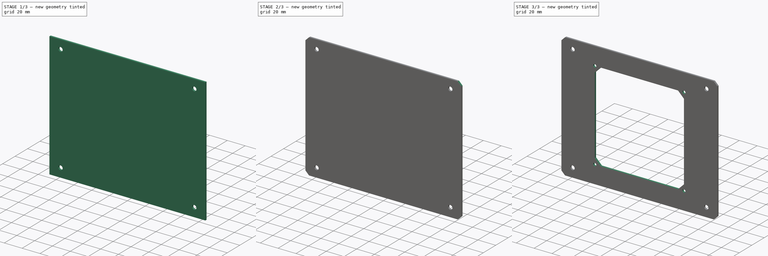
[diagram: build sequence overview — one tinted view per stage of 3, left to right]
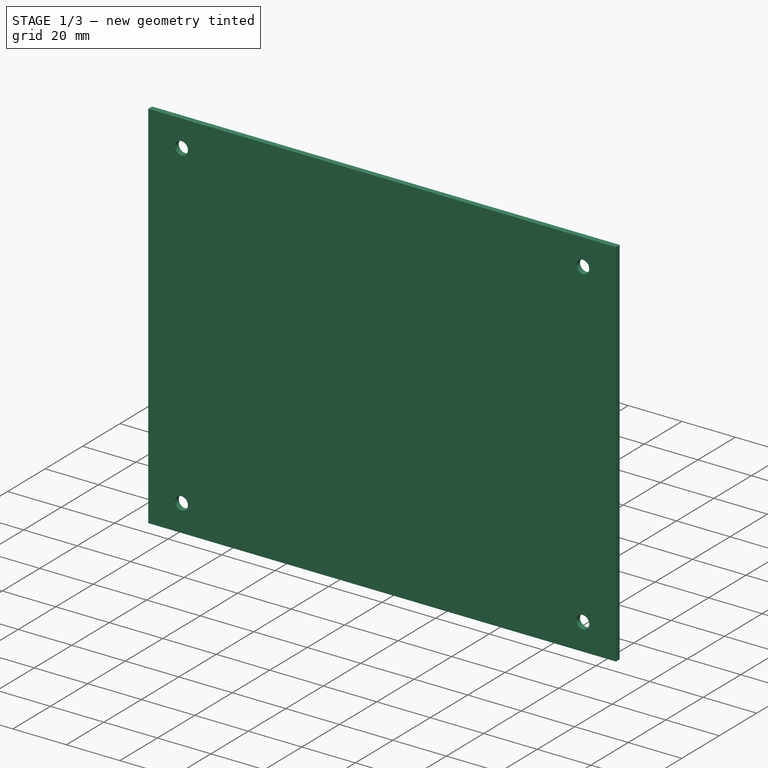
[diagram: stage 1 of 3 — iso view after this stage's code; geometry added in this stage tinted green]
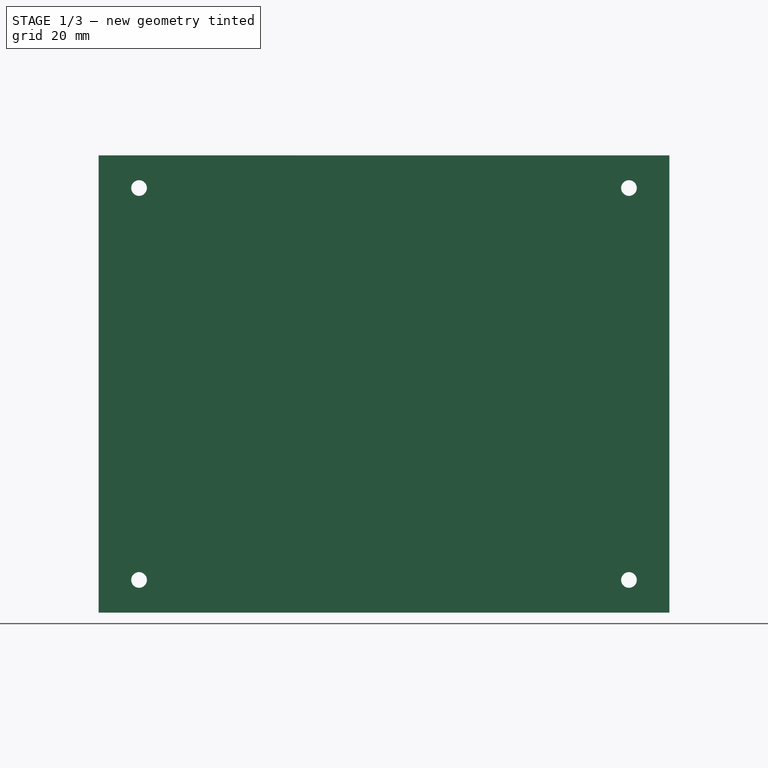
[diagram: stage 1 of 3 — front view after this stage's code; geometry added in this stage tinted green]
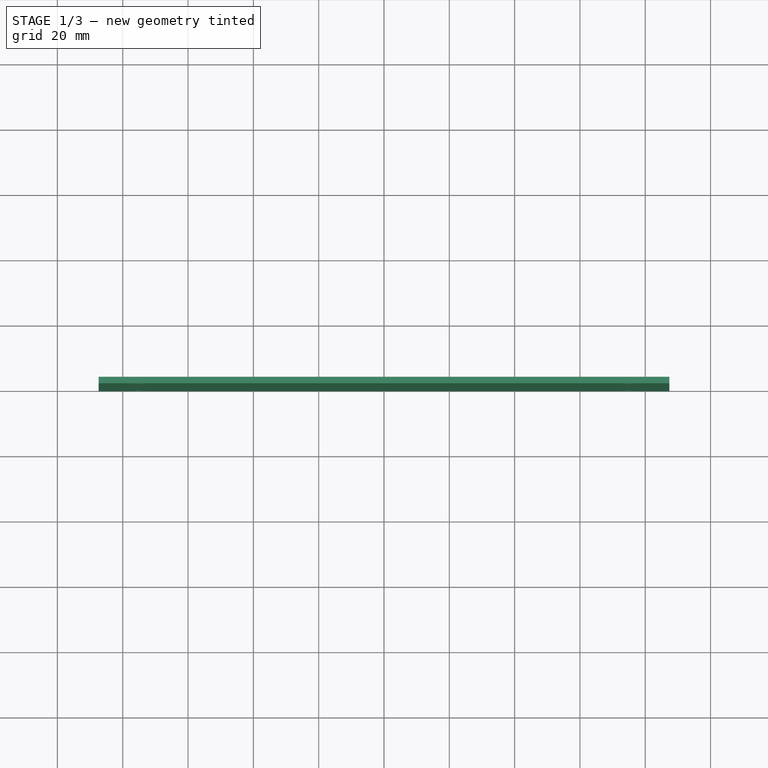
[diagram: stage 1 of 3 — top view after this stage's code; geometry added in this stage tinted green]
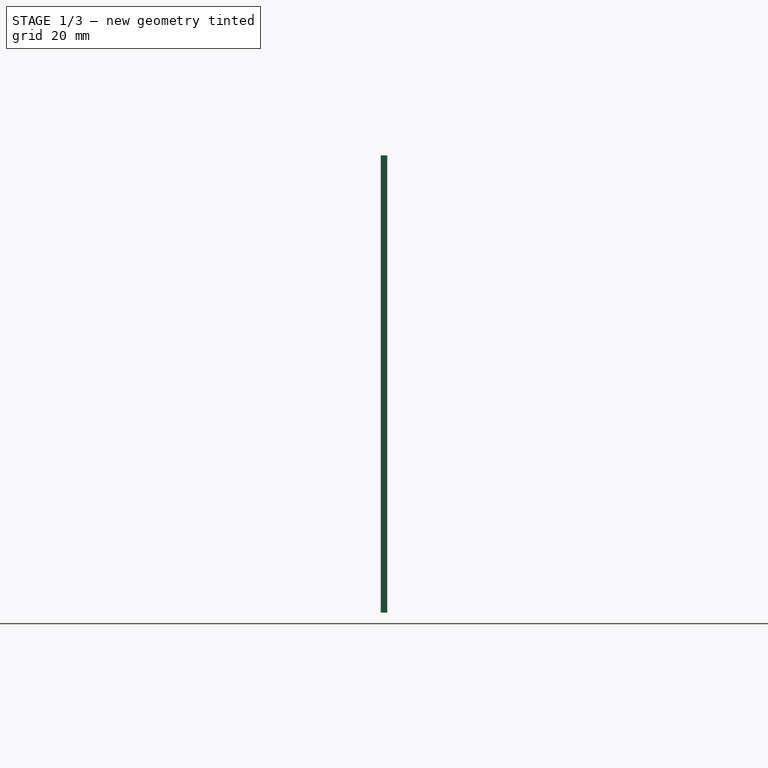
[diagram: stage 1 of 3 — right view after this stage's code; geometry added in this stage tinted green]
FCSTD DOCUMENT  (FreeCAD 1.0R39319 (Git))
Label: OCT-LFPNL-FB
License: Creative Commons Attribution 4.0
LicenseURL: https://creativecommons.org/licenses/by/4.0/
objects: Sketcher::SketchObject×4, PartDesign::Hole×2, App::Link×1, PartDesign::Pad×1, PartDesign::Chamfer×1, PartDesign::Pocket×1, PartDesign::Body×1
note: 24 computed .brp shape members not serialized (recipe doc carries the construction recipe); baked Part::Feature solids carry a one-line shape summary decoded from their .brp
EXTERNAL_REF file=../master.FCStd obj=Spreadsheet

FEATURE [App::Link] Link  label="dims"
  LinkedObject = -> <external ../master.FCStd>#Spreadsheet
FEATURE [Sketcher::SketchObject] Sketch
  ArcFitTolerance = 1e-06
  AttachmentSupport = -> [XZ_Plane]
  FullyConstrained = true
  MakeInternals = false
  MapMode = 5
  Placement = pos=(0,0,0) rot=(1,0,0;1.5708rad)
  expr: Constraints[10] = <<dims>>.opFurnace
  sketch-geometry (5):
    g0: LineSegment StartX=-87.3991 StartY=-70 StartZ=0 EndX=87.3991 EndY=-70 EndZ=0
    g1: LineSegment StartX=87.3991 StartY=-70 StartZ=0 EndX=87.3991 EndY=70 EndZ=0
    g2: LineSegment StartX=87.3991 StartY=70 StartZ=0 EndX=-87.3991 EndY=70 EndZ=0
    g3: LineSegment StartX=-87.3991 StartY=70 StartZ=0 EndX=-87.3991 EndY=-70 EndZ=0
    g4: GeomPoint [constr] X=0 Y=0 Z=0
  constraints (12):
    c: Coincident(g0,g1)
    c: Coincident(g1,g2)
    c: Coincident(g2,g3)
    c: Coincident(g3,g0)
    c: Horizontal(g0)
    c: Horizontal(g2)
    c: Vertical(g1)
    c: Vertical(g3)
    c: Symmetric(g2,g0,g4)
    c: Coincident(g4,g-1)
    c: DistanceX(g2,g2) = 174.798
    c: DistanceY(g3,g3) = 140
FEATURE [PartDesign::Pad] Pad
  Direction = (0,-1,2e-16)
  Length = 2
  Length2 = 10
  Placement = pos=(0,0,0) rot=(1,0,0;1.5708rad)
  Profile = -> Sketch
  ReferenceAxis = -> Sketch [N_Axis]
  Reversed = true
  Suppressed = false
  Type = 0
  expr: Length = <<dims>>.tLowerPanel
FEATURE [Sketcher::SketchObject] Sketch001
  ArcFitTolerance = 1e-06
  AttachmentSupport = -> [XZ_Plane]
  FullyConstrained = true
  MakeInternals = false
  MapMode = 5
  Placement = pos=(0,0,0) rot=(1,0,0;1.5708rad)
  sketch-geometry (9):
    g0: LineSegment [constr] StartX=-75 StartY=-60 StartZ=0 EndX=75 EndY=-60 EndZ=0
    g1: LineSegment [constr] StartX=75 StartY=-60 StartZ=0 EndX=75 EndY=60 EndZ=0
    g2: LineSegment [constr] StartX=75 StartY=60 StartZ=0 EndX=-75 EndY=60 EndZ=0
    g3: LineSegment [constr] StartX=-75 StartY=60 StartZ=0 EndX=-75 EndY=-60 EndZ=0
    g4: GeomPoint [constr] X=0 Y=0 Z=0
    g5: Circle CenterX=-75 CenterY=60 CenterZ=0 NormalX=0 NormalY=0 NormalZ=1 AngleXU=0 Radius=2
    g6: Circle CenterX=75 CenterY=60 CenterZ=0 NormalX=0 NormalY=0 NormalZ=1 AngleXU=0 Radius=2
    g7: Circle CenterX=75 CenterY=-60 CenterZ=0 NormalX=0 NormalY=0 NormalZ=1 AngleXU=0 Radius=2
    g8: Circle CenterX=-75 CenterY=-60 CenterZ=0 NormalX=0 NormalY=0 NormalZ=1 AngleXU=0 Radius=2
  constraints (20):
    c: Coincident(g0,g1)
    c: Coincident(g1,g2)
    c: Coincident(g2,g3)
    c: Coincident(g3,g0)
    c: Horizontal(g0)
    c: Horizontal(g2)
    c: Vertical(g1)
    c: Vertical(g3)
    c: Symmetric(g2,g0,g4)
    c: Coincident(g4,g-1)
    c: DistanceX(g2,g2) = 150
    c: DistanceY(g3,g3) = 120
    c: Coincident(g5,g2)
    c: Coincident(g6,g1)
    c: Coincident(g7,g0)
    c: Coincident(g8,g0)
    c: Equal(g5,g6)
    c: Equal(g6,g7)
    c: Equal(g7,g8)
    c: Diameter(g5) = 4
FEATURE [PartDesign::Hole] Hole  label="frame mount holes"
  BaseFeature = -> Pad
  CustomThreadClearance = 0
  Depth = 599.768
  DepthType = 1
  Diameter = 4.8
  DrillForDepth = false
  DrillPoint = 1
  DrillPointAngle = 118
  HoleCutCountersinkAngle = 90
  HoleCutCustomValues = false
  HoleCutDepth = 0
  HoleCutDiameter = 6.1
  HoleCutType = 0
  ModelThread = false
  Placement = pos=(0,0,0) rot=(1,0,0;1.5708rad)
  Profile = -> Sketch001
  Suppressed = false
  Tapered = false
  TaperedAngle = 90
  ThreadClass = 0
  ThreadDepth = 599.768
  ThreadDepthType = 0
  ThreadDirection = 0
  ThreadFit = 2
  ThreadSize = 11
  ThreadType = 1
  Threaded = false
  UseCustomThreadClearance = false
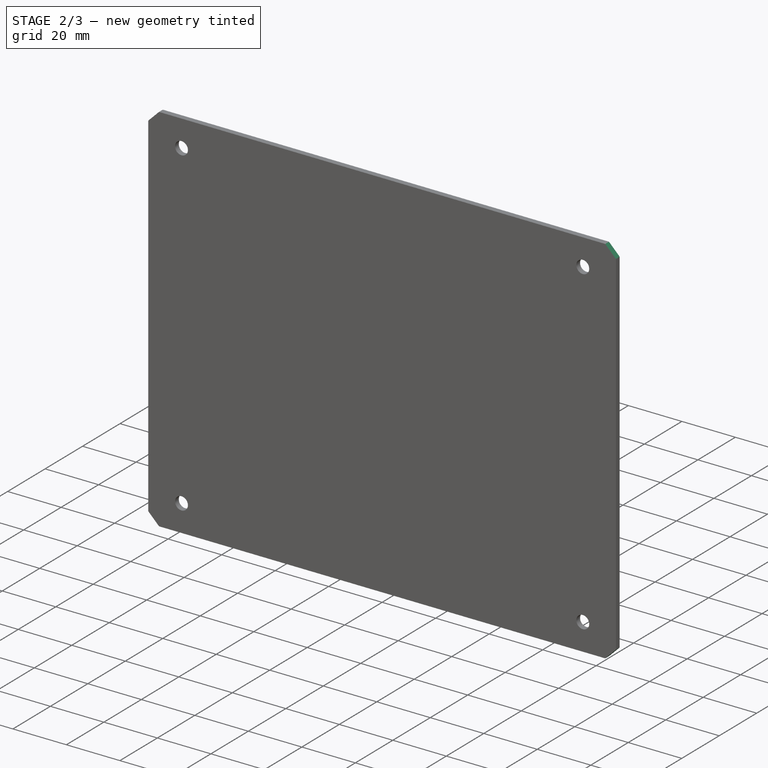
[diagram: stage 2 of 3 — iso view after this stage's code; geometry added in this stage tinted green]
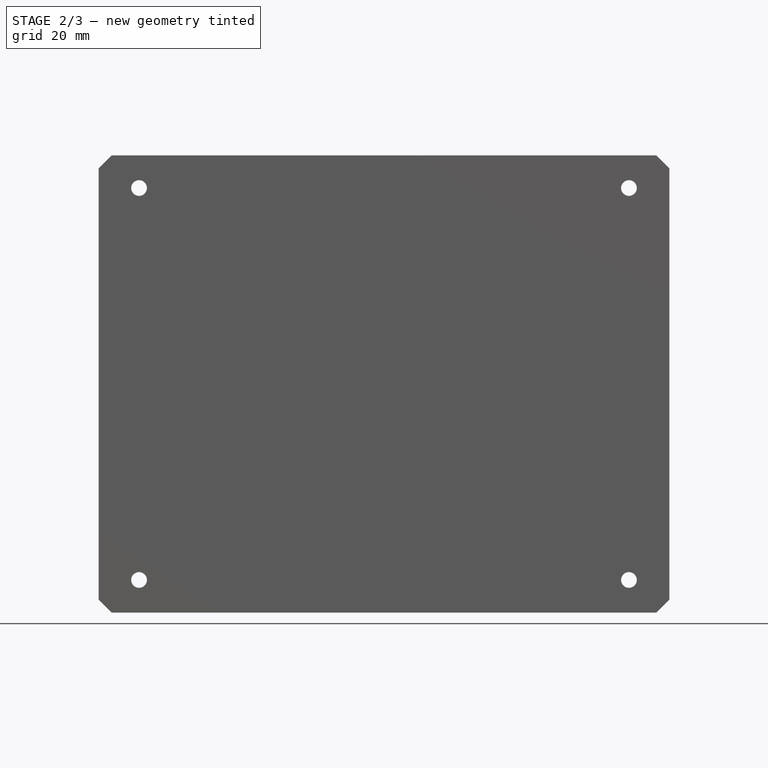
[diagram: stage 2 of 3 — front view after this stage's code; geometry added in this stage tinted green]
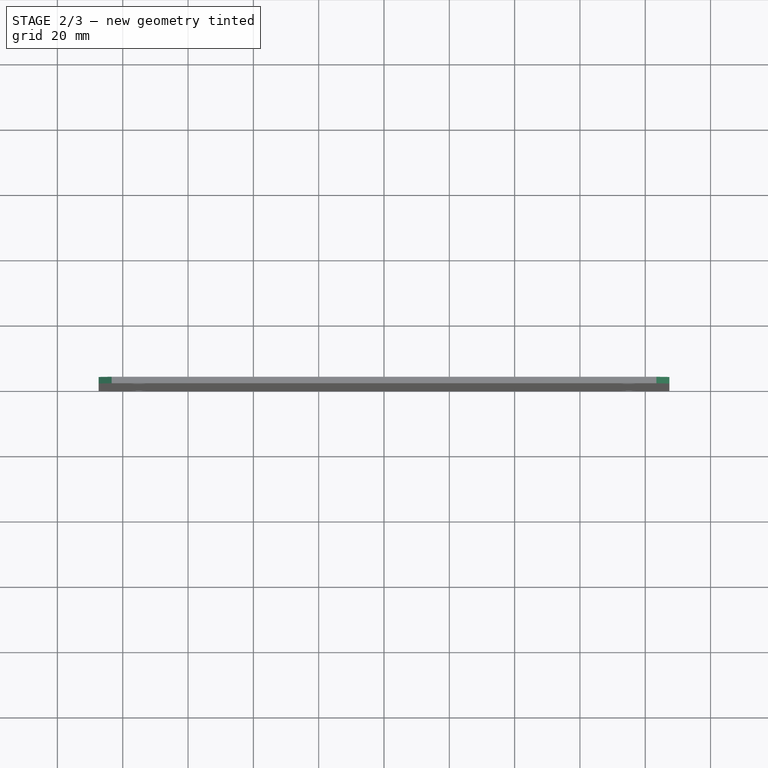
[diagram: stage 2 of 3 — top view after this stage's code; geometry added in this stage tinted green]
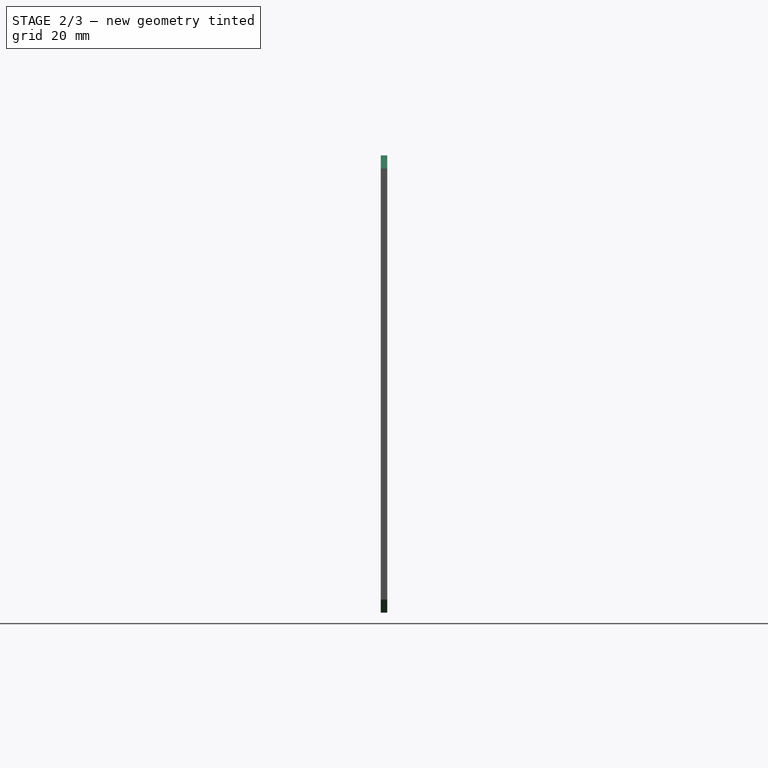
[diagram: stage 2 of 3 — right view after this stage's code; geometry added in this stage tinted green]
FEATURE [PartDesign::Chamfer] Chamfer
  Angle = 45
  Base = -> Hole [Edge5,Edge8,Edge2,Edge1]
  BaseFeature = -> Hole
  ChamferType = 0
  FlipDirection = false
  Placement = pos=(0,0,0) rot=(1,0,0;1.5708rad)
  Size = 4
  Size2 = 1
  SupportTransform = false
  Suppressed = false
  UseAllEdges = false
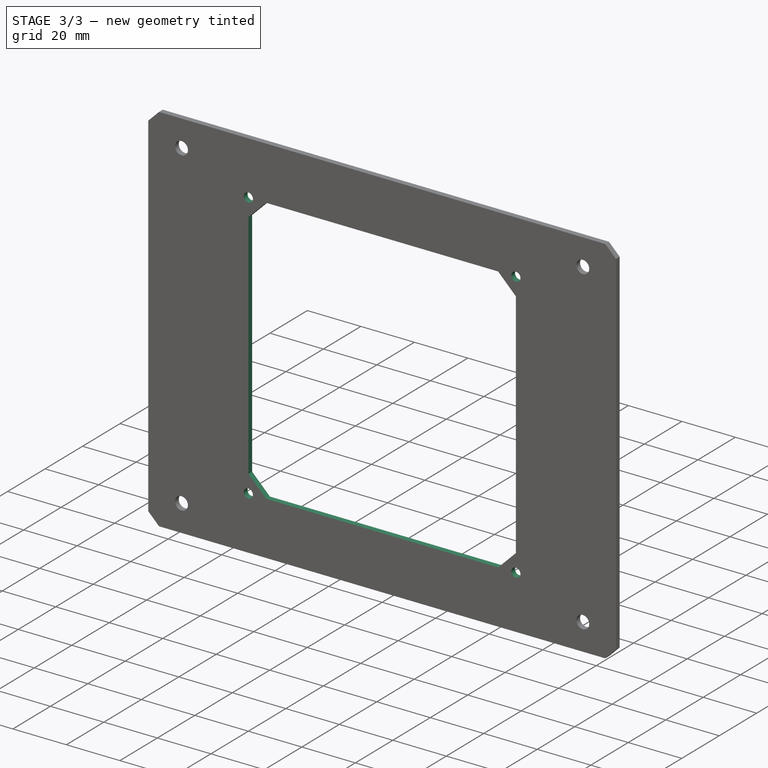
[diagram: stage 3 of 3 — iso view after this stage's code; geometry added in this stage tinted green]
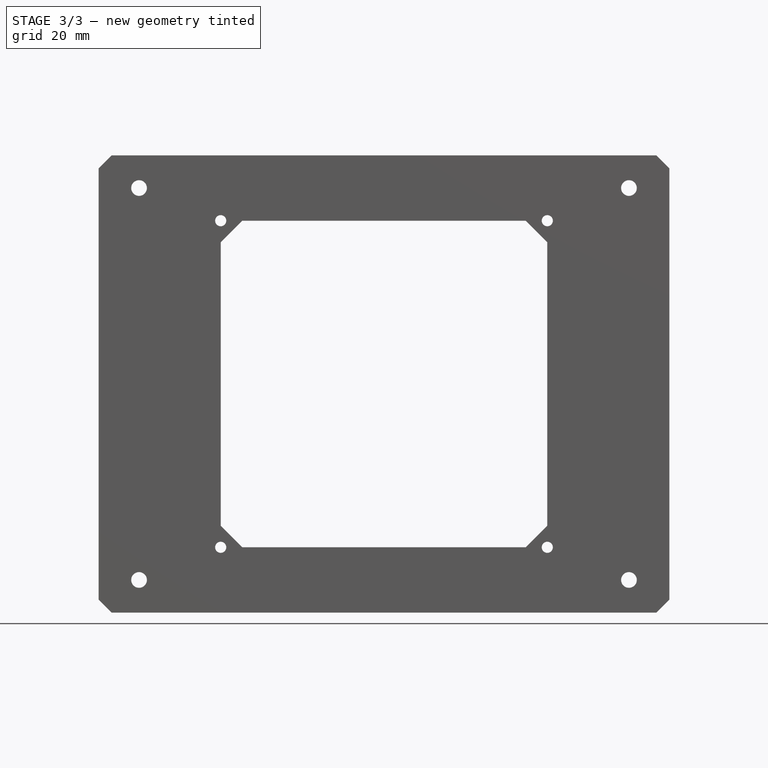
[diagram: stage 3 of 3 — front view after this stage's code; geometry added in this stage tinted green]
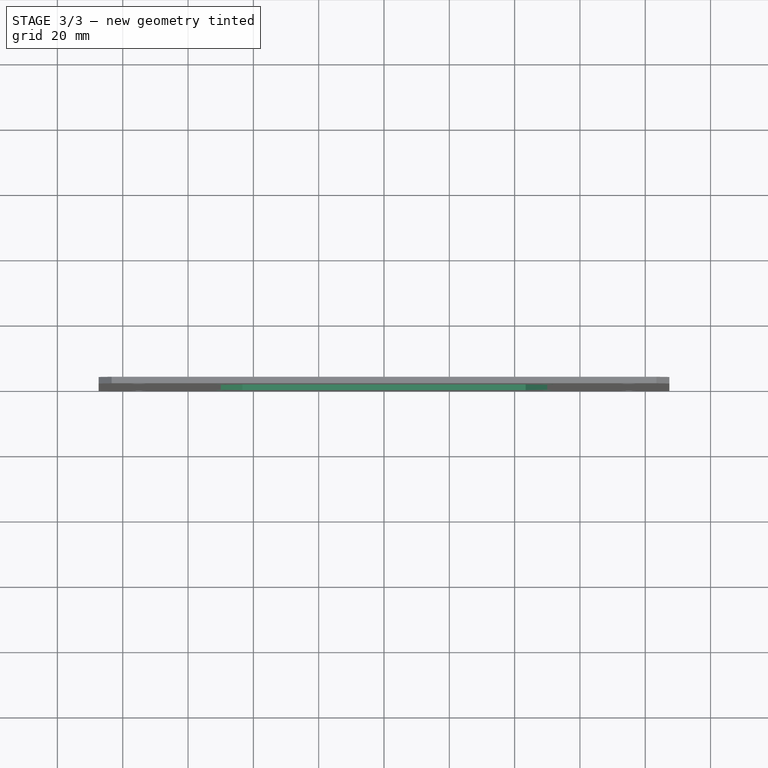
[diagram: stage 3 of 3 — top view after this stage's code; geometry added in this stage tinted green]
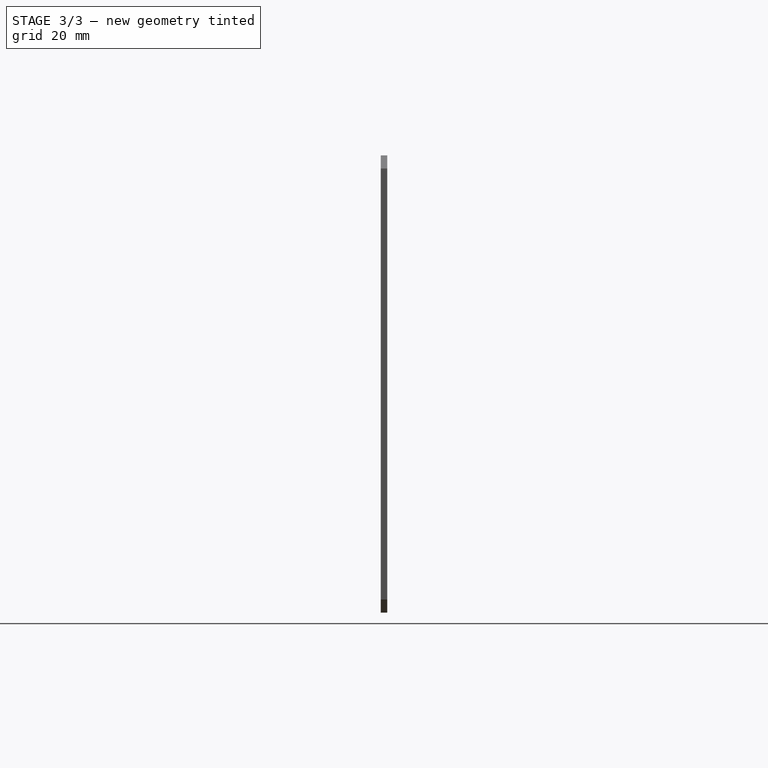
[diagram: stage 3 of 3 — right view after this stage's code; geometry added in this stage tinted green]
FEATURE [Sketcher::SketchObject] Sketch002
  ArcFitTolerance = 1e-06
  AttachmentSupport = -> [Chamfer]
  FullyConstrained = true
  MakeInternals = false
  MapMode = 5
  Placement = pos=(0,0,0) rot=(1,0,0;1.5708rad)
  sketch-geometry (9):
    g0: LineSegment [constr] StartX=50 StartY=-50 StartZ=0 EndX=50 EndY=50 EndZ=0
    g1: LineSegment [constr] StartX=50 StartY=50 StartZ=0 EndX=-50 EndY=50 EndZ=0
    g2: LineSegment [constr] StartX=-50 StartY=50 StartZ=0 EndX=-50 EndY=-50 EndZ=0
    g3: LineSegment [constr] StartX=-50 StartY=-50 StartZ=0 EndX=50 EndY=-50 EndZ=0
    g4: GeomPoint [constr] X=0 Y=0 Z=0
    g5: Circle CenterX=-50 CenterY=50 CenterZ=0 NormalX=0 NormalY=0 NormalZ=1 AngleXU=0 Radius=1.5
    g6: Circle CenterX=50 CenterY=50 CenterZ=0 NormalX=0 NormalY=0 NormalZ=1 AngleXU=0 Radius=1.5
    g7: Circle CenterX=50 CenterY=-50 CenterZ=0 NormalX=0 NormalY=0 NormalZ=1 AngleXU=0 Radius=1.5
    g8: Circle CenterX=-50 CenterY=-50 CenterZ=0 NormalX=0 NormalY=0 NormalZ=1 AngleXU=0 Radius=1.5
  constraints (20):
    c: Coincident(g0,g1)
    c: Coincident(g1,g2)
    c: Coincident(g2,g3)
    c: Coincident(g3,g0)
    c: Vertical(g0)
    c: Vertical(g2)
    c: Horizontal(g1)
    c: Horizontal(g3)
    c: Symmetric(g2,g0,g4)
    c: Coincident(g4,g-1)
    c: Coincident(g5,g1)
    c: Coincident(g6,g0)
    c: Coincident(g7,g0)
    c: Coincident(g8,g2)
    c: Equal(g5,g6)
    c: Equal(g6,g7)
    c: Equal(g7,g8)
    c: Diameter(g5) = 3
    c: DistanceX(g1,g1) = 100
    c: DistanceY(g0,g0) = 100
FEATURE [PartDesign::Hole] Hole001  label="controller mount holes"
  BaseFeature = -> Chamfer
  CustomThreadClearance = 0
  Depth = 452.401
  DepthType = 1
  Diameter = 3.4
  DrillForDepth = false
  DrillPoint = 1
  DrillPointAngle = 118
  HoleCutCountersinkAngle = 90
  HoleCutCustomValues = false
  HoleCutDepth = 0
  HoleCutDiameter = 6.1
  HoleCutType = 0
  ModelThread = false
  Placement = pos=(0,0,0) rot=(1,0,0;1.5708rad)
  Profile = -> Sketch002
  Suppressed = false
  Tapered = false
  TaperedAngle = 90
  ThreadClass = 0
  ThreadDepth = 452.401
  ThreadDepthType = 0
  ThreadDirection = 0
  ThreadFit = 0
  ThreadSize = 9
  ThreadType = 1
  Threaded = false
  UseCustomThreadClearance = false
FEATURE [Sketcher::SketchObject] Sketch003
  ArcFitTolerance = 1e-06
  AttachmentSupport = -> [Hole001]
  ExternalGeometry = -> [Hole001]
  FullyConstrained = true
  MakeInternals = false
  MapMode = 5
  Placement = pos=(0,0,0) rot=(1,0,0;1.5708rad)
  sketch-geometry (17):
    g0: LineSegment [constr] StartX=50 StartY=-50 StartZ=0 EndX=50 EndY=50 EndZ=0
    g1: LineSegment [constr] StartX=50 StartY=50 StartZ=0 EndX=-50 EndY=50 EndZ=0
    g2: LineSegment [constr] StartX=-50 StartY=50 StartZ=0 EndX=-50 EndY=-50 EndZ=0
    g3: LineSegment [constr] StartX=-50 StartY=-50 StartZ=0 EndX=50 EndY=-50 EndZ=0
    g4: GeomPoint [constr] X=0 Y=0 Z=0
    g5: LineSegment StartX=-43.3532 StartY=50 StartZ=0 EndX=43.3532 EndY=50 EndZ=0
    g6: LineSegment StartX=50 StartY=43.3532 StartZ=0 EndX=50 EndY=-43.3532 EndZ=0
    g7: LineSegment StartX=43.3532 StartY=-50 StartZ=0 EndX=-43.3532 EndY=-50 EndZ=0
    g8: LineSegment StartX=-50 StartY=-43.3532 StartZ=0 EndX=-50 EndY=43.3532 EndZ=0
    g9: LineSegment StartX=-50 StartY=-43.3532 StartZ=0 EndX=-43.3532 EndY=-50 EndZ=0
    g10: LineSegment StartX=43.3532 StartY=-50 StartZ=0 EndX=50 EndY=-43.3532 EndZ=0
    g11: LineSegment StartX=43.3532 StartY=50 StartZ=0 EndX=50 EndY=43.3532 EndZ=0
    g12: LineSegment StartX=-50 StartY=43.3532 StartZ=0 EndX=-43.3532 EndY=50 EndZ=0
    g13: LineSegment [constr] StartX=-50 StartY=43.3532 StartZ=0 EndX=50 EndY=43.3532 EndZ=0
    g14: LineSegment [constr] StartX=-50 StartY=-43.3532 StartZ=0 EndX=50 EndY=-43.3532 EndZ=0
    g15: LineSegment [constr] StartX=-48.7979 StartY=48.7979 StartZ=0 EndX=-46.6766 EndY=46.6766 EndZ=0
    g16: LineSegment [constr] StartX=-50 StartY=50 StartZ=0 EndX=-48.7979 EndY=48.7979 EndZ=0
  constraints (44):
    c: Coincident(g0,g1)
    c: Coincident(g1,g2)
    c: Coincident(g2,g3)
    c: Coincident(g3,g0)
    c: Vertical(g0)
    c: Vertical(g2)
    c: Horizontal(g1)
    c: Horizontal(g3)
    c: Symmetric(g2,g0,g4)
    c: Coincident(g1,g-3)
    c: PointOnObject(g5,g1)
    c: PointOnObject(g5,g1)
    c: PointOnObject(g6,g0)
    c: PointOnObject(g6,g0)
    c: PointOnObject(g7,g3)
    c: PointOnObject(g7,g3)
    c: PointOnObject(g8,g2)
    c: PointOnObject(g8,g2)
    c: Coincident(g4,g-1)
    c: Coincident(g9,g8)
    c: Coincident(g9,g7)
    c: Coincident(g10,g7)
    c: Coincident(g10,g6)
    c: Coincident(g11,g5)
    c: Coincident(g11,g6)
    c: Coincident(g12,g8)
    c: Coincident(g12,g5)
    c: Angle(g12,g1) = 2.35619
    c: Equal(g12,g9)
    c: Equal(g9,g10)
    c: Equal(g10,g11)
    c: Coincident(g13,g8)
    c: Coincident(g13,g6)
    c: Coincident(g14,g8)
    c: Coincident(g14,g6)
    c: Horizontal(g14)
    c: Horizontal(g13)
    c: Equal(g5,g7)
    c: PointOnObject(g15,g-3)
    c: Symmetric(g12,g12,g15)
    c: Distance(g15,g15) = 3
    c: Coincident(g16,g1)
    c: Coincident(g16,g15)
    c: Parallel(g15,g16)
FEATURE [PartDesign::Pocket] Pocket  label="controller pocket"
  BaseFeature = -> Hole001
  Direction = (0,1,-2e-16)
  Length = 5
  Length2 = 5
  Placement = pos=(0,0,0) rot=(1,0,0;1.5708rad)
  Profile = -> Sketch003
  ReferenceAxis = -> Sketch003 [N_Axis]
  Suppressed = false
  Type = 1
FEATURE [PartDesign::Body] Body  label="front panel"
  AllowCompound = false
  Group = -> [Sketch,Pad,Sketch001,Hole,Chamfer,Sketch002,Hole001,Sketch003,Pocket]
  Origin = -> Origin
  Tip = -> Pocket
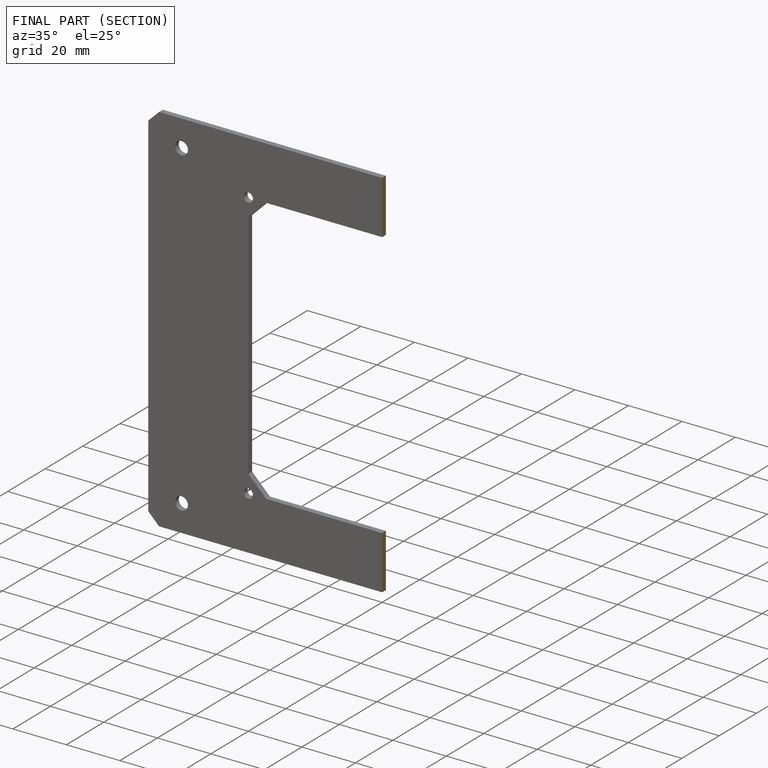
[diagram: finished part — half-section view (interior)]
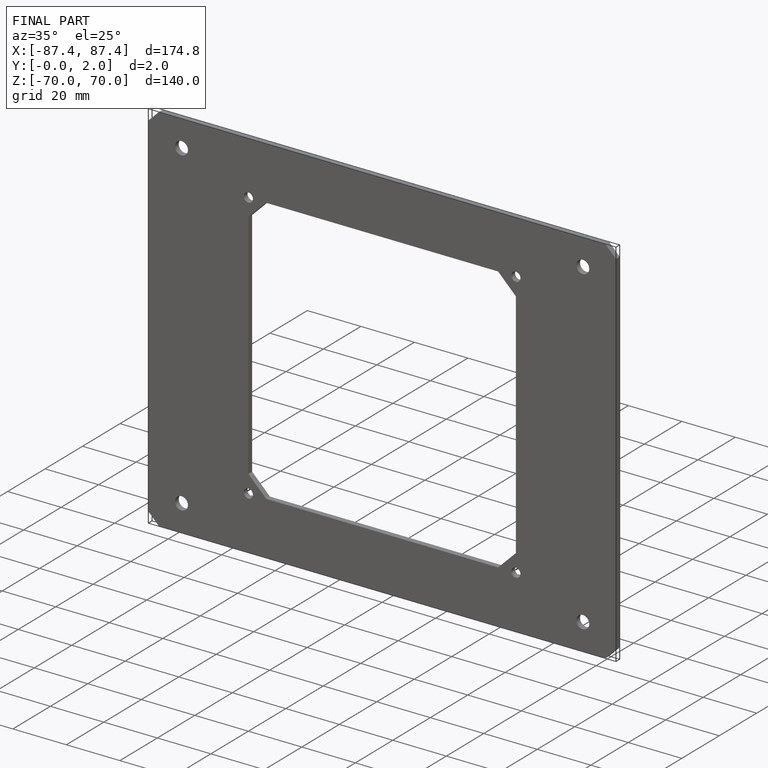
[diagram: finished part — iso view with bounding-box wireframe]
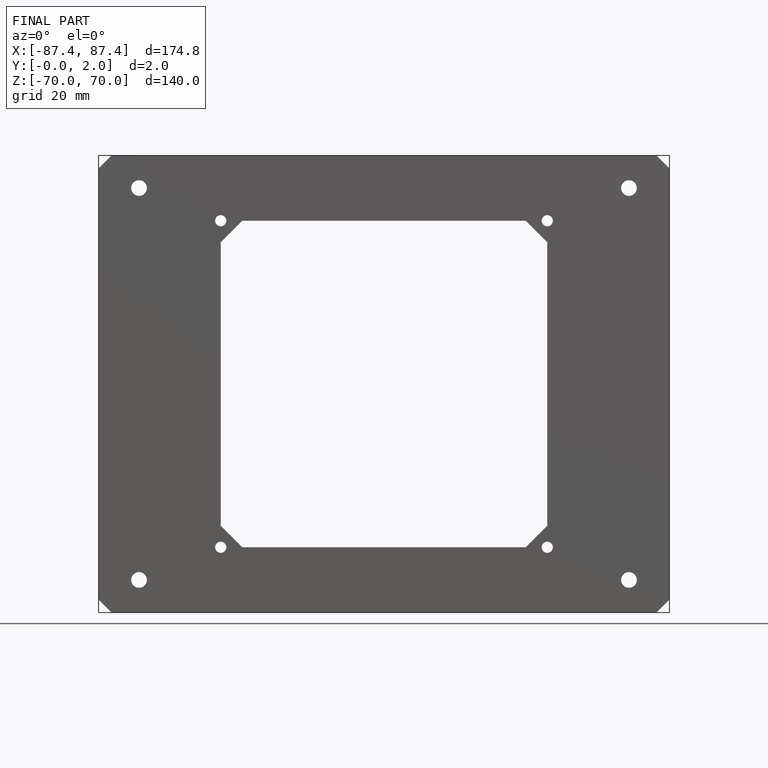
[diagram: finished part — front view with bounding-box wireframe]
